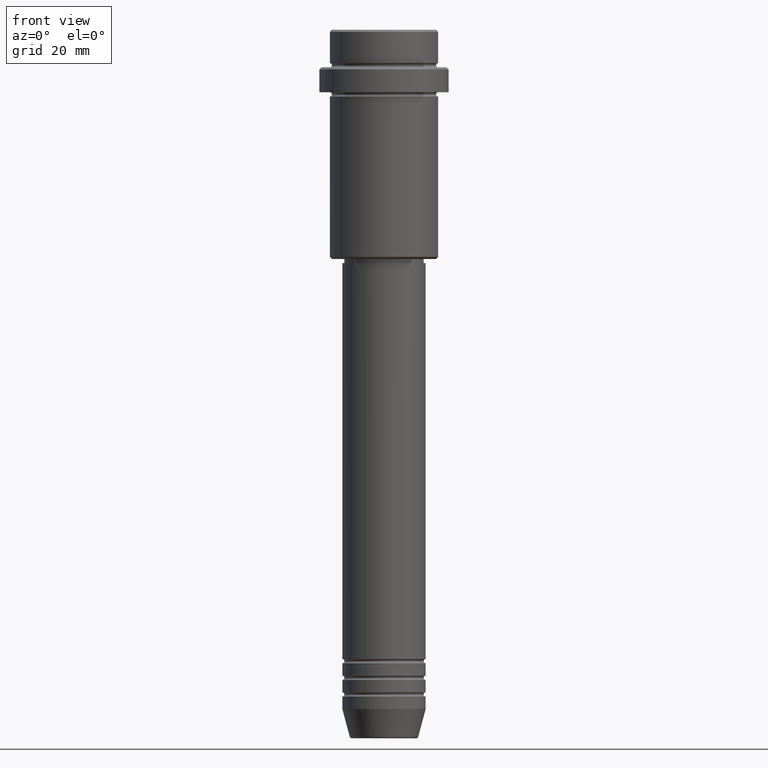
[diagram: clean part render]
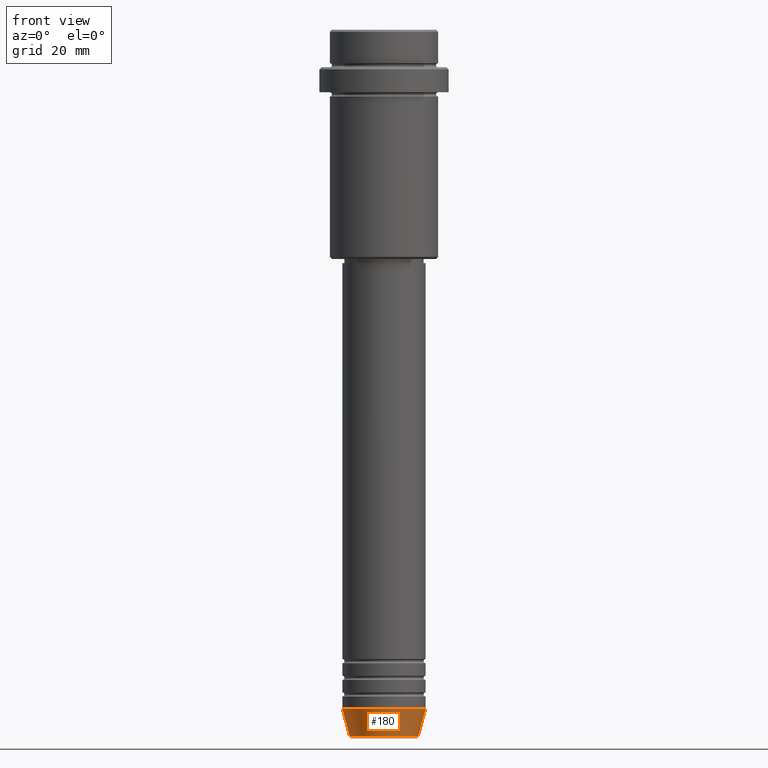
[diagram: same view with one face highlighted and labeled with its STEP entity id]
A machine part, front view. The second image highlights one B-rep face of the part: STEP entity #180.
In plain terms, the highlighted conical surface has half-angle 15 deg.
Its self-contained STEP definition (entity closure, byte-faithful):
#1 = AXIS2_PLACEMENT_3D ( 'NONE', #652, #885, #678 ) ;
#167 = DIRECTION ( 'NONE',  ( -0.000000000000000000, -0.000000000000000000, 1.000000000000000000 ) ) ;
#180 = ADVANCED_FACE ( 'NONE', ( #943 ), #458, .T. ) ;
#182 = CARTESIAN_POINT ( 'NONE',  ( 0.000000000000000000, 0.000000000000000000, -169.6294095225512422 ) ) ;
#236 = ORIENTED_EDGE ( 'NONE', *, *, #975, .T. ) ;
#250 = LINE ( 'NONE', #794, #1348 ) ;
#297 = VERTEX_POINT ( 'NONE', #326 ) ;
#326 = CARTESIAN_POINT ( 'NONE',  ( -10.00000000000000000, 1.224646799147353256E-15, -162.9999999999999716 ) ) ;
#355 = ORIENTED_EDGE ( 'NONE', *, *, #882, .F. ) ;
#399 = DIRECTION ( 'NONE',  ( -0.000000000000000000, -0.000000000000000000, 1.000000000000000000 ) ) ;
#427 = CARTESIAN_POINT ( 'NONE',  ( 10.00000000000000000, 0.000000000000000000, -162.9999999999999716 ) ) ;
#446 = ORIENTED_EDGE ( 'NONE', *, *, #727, .T. ) ;
#458 = CONICAL_SURFACE ( 'NONE', #1211, 10.00000000000000000, 0.2617993877991500740 ) ;
#472 = LINE ( 'NONE', #918, #939 ) ;
#504 = VERTEX_POINT ( 'NONE', #561 ) ;
#520 = EDGE_LOOP ( 'NONE', ( #1407, #446, #236, #355 ) ) ;
#561 = CARTESIAN_POINT ( 'NONE',  ( -8.223655072137191269, 1.115877042642912054E-15, -169.6294095225512422 ) ) ;
#652 = CARTESIAN_POINT ( 'NONE',  ( 0.000000000000000000, 0.000000000000000000, -162.9999999999999716 ) ) ;
#678 = DIRECTION ( 'NONE',  ( 1.000000000000000000, 0.000000000000000000, 0.000000000000000000 ) ) ;
#701 = VERTEX_POINT ( 'NONE', #427 ) ;
#723 = CIRCLE ( 'NONE', #1, 10.00000000000000000 ) ;
#727 = EDGE_CURVE ( 'NONE', #504, #927, #1276, .T. ) ;
#794 = CARTESIAN_POINT ( 'NONE',  ( 10.00000000000000000, 0.000000000000000000, -162.9999999999999716 ) ) ;
#882 = EDGE_CURVE ( 'NONE', #297, #701, #723, .T. ) ;
#885 = DIRECTION ( 'NONE',  ( -0.000000000000000000, -0.000000000000000000, 1.000000000000000000 ) ) ;
#918 = CARTESIAN_POINT ( 'NONE',  ( -10.00000000000000000, 1.224646799147353256E-15, -162.9999999999999716 ) ) ;
#927 = VERTEX_POINT ( 'NONE', #1329 ) ;
#939 = VECTOR ( 'NONE', #1137, 1000.000000000000000 ) ;
#943 = FACE_OUTER_BOUND ( 'NONE', #520, .T. ) ;
#975 = EDGE_CURVE ( 'NONE', #927, #701, #250, .T. ) ;
#1015 = DIRECTION ( 'NONE',  ( 0.2588190451025213501, 0.000000000000000000, 0.9659258262890680902 ) ) ;
#1029 = EDGE_CURVE ( 'NONE', #504, #297, #472, .T. ) ;
#1031 = AXIS2_PLACEMENT_3D ( 'NONE', #182, #399, #1266 ) ;
#1058 = CARTESIAN_POINT ( 'NONE',  ( 0.000000000000000000, 0.000000000000000000, -162.9999999999999716 ) ) ;
#1137 = DIRECTION ( 'NONE',  ( -0.2588190451025213501, 3.169619151431772337E-17, 0.9659258262890680902 ) ) ;
#1211 = AXIS2_PLACEMENT_3D ( 'NONE', #1058, #167, #1291 ) ;
#1266 = DIRECTION ( 'NONE',  ( 1.000000000000000000, 0.000000000000000000, 0.000000000000000000 ) ) ;
#1276 = CIRCLE ( 'NONE', #1031, 8.223655072137191269 ) ;
#1291 = DIRECTION ( 'NONE',  ( 1.000000000000000000, 0.000000000000000000, 0.000000000000000000 ) ) ;
#1329 = CARTESIAN_POINT ( 'NONE',  ( 8.223655072137191269, 0.000000000000000000, -169.6294095225512422 ) ) ;
#1348 = VECTOR ( 'NONE', #1015, 1000.000000000000000 ) ;
#1407 = ORIENTED_EDGE ( 'NONE', *, *, #1029, .F. ) ;